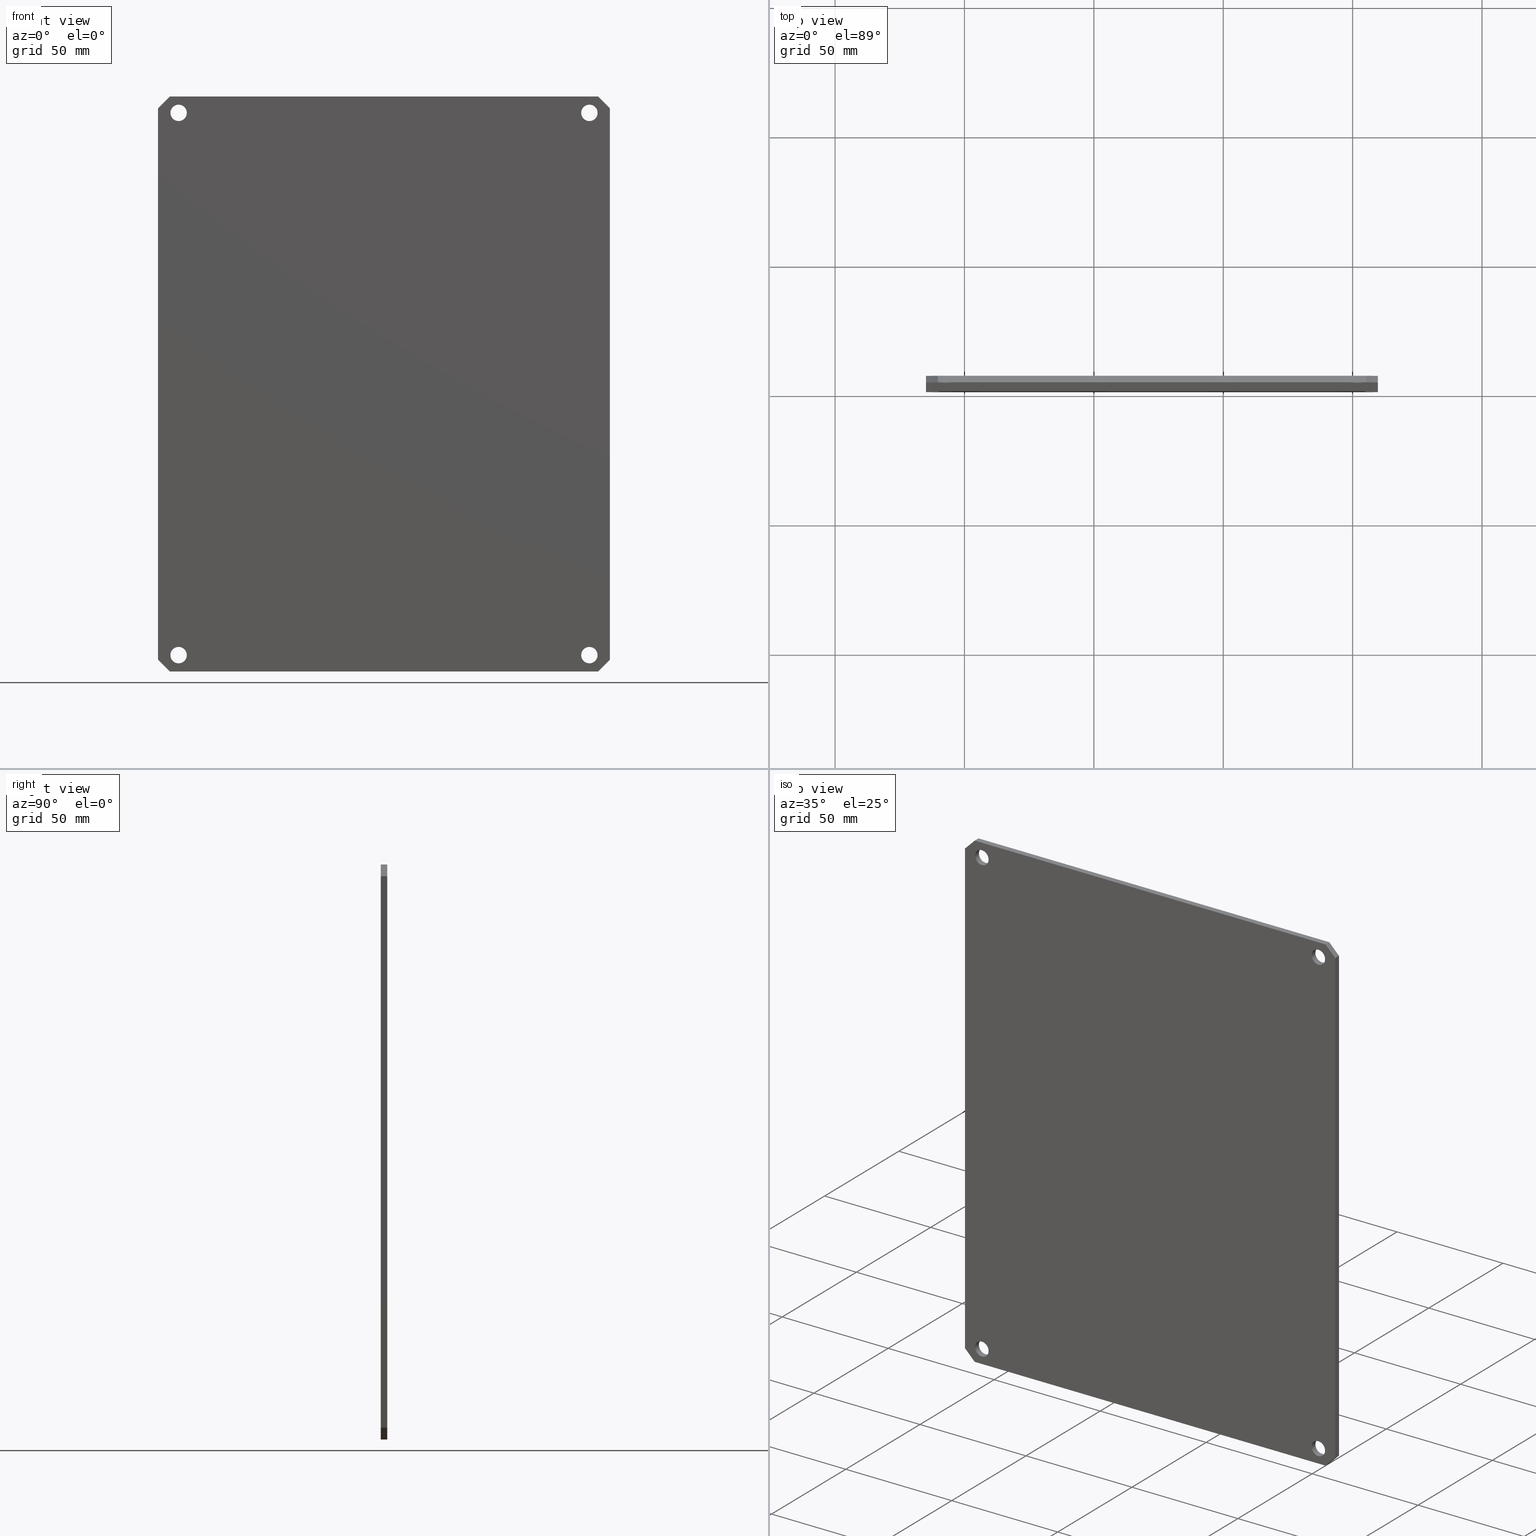
[diagram: canonical four-view strip — front | top / right | iso, engineering-drawing reading convention]
A machine part, canonical four-view strip (front | top / right | iso — engineering-drawing reading convention). The complete STEP part file that produces these views, byte-faithful:
ISO-10303-21;
HEADER;
FILE_DESCRIPTION (( 'STEP AP203' ),
    '1' );
FILE_NAME ('PLA108.step',
    '2014-06-26T14:38:43',
    ( '' ),
    ( '' ),
    'SwSTEP 2.0',
    'SolidWorks 2014',
    '' );
FILE_SCHEMA (( 'CONFIG_CONTROL_DESIGN' ));
ENDSEC;

DATA;
#1 = PLANE ( 'NONE',  #125 ) ;
#2 = FACE_OUTER_BOUND ( 'NONE', #376, .T. ) ;
#3 = CARTESIAN_POINT ( 'NONE',  ( 0.3853371596265775500, 0.06212389664218024400, -2.728529112272011200 ) ) ;
#4 = CARTESIAN_POINT ( 'NONE',  ( 0.07283715962657751100, 0.06212389664218024400, -2.658529112272010100 ) ) ;
#5 = EDGE_LOOP ( 'NONE', ( #502, #59, #428, #642 ) ) ;
#6 = CARTESIAN_POINT ( 'NONE',  ( 0.07283715962657753800, 0.1621238966421802400, -2.783529112272010100 ) ) ;
#7 = PRODUCT_DEFINITION_FORMATION_WITH_SPECIFIED_SOURCE ( 'ANY', '', #552, .NOT_KNOWN. ) ;
#8 = DIRECTION ( 'NONE',  ( -0.0000000000000000000, -0.0000000000000000000, 1.000000000000000000 ) ) ;
#9 = VERTEX_POINT ( 'NONE', #307 ) ;
#10 = ORIENTED_EDGE ( 'NONE', *, *, #161, .T. ) ;
#11 = DIRECTION ( 'NONE',  ( 0.0000000000000000000, 0.0000000000000000000, 1.000000000000000000 ) ) ;
#12 = LINE ( 'NONE', #469, #149 ) ;
#13 = COORDINATED_UNIVERSAL_TIME_OFFSET ( 5, 0, .BEHIND. ) ;
#14 = EDGE_CURVE ( 'NONE', #141, #9, #75, .T. ) ;
#15 = DIRECTION ( 'NONE',  ( 0.7071067811865496800, -0.0000000000000000000, 0.7071067811865454600 ) ) ;
#16 = CARTESIAN_POINT ( 'NONE',  ( 0.3853371596265775500, 0.06212389664218024400, 5.661470887727989300 ) ) ;
#17 = VECTOR ( 'NONE', #574, 39.37007874015748100 ) ;
#18 = ORIENTED_EDGE ( 'NONE', *, *, #486, .F. ) ;
#19 = DIRECTION ( 'NONE',  ( 0.0000000000000000000, 0.0000000000000000000, 1.000000000000000000 ) ) ;
#20 = AXIS2_PLACEMENT_3D ( 'NONE', #60, #431, #108 ) ;
#21 = ORIENTED_EDGE ( 'NONE', *, *, #383, .F. ) ;
#22 = APPROVAL_ROLE ( '' ) ;
#23 = EDGE_CURVE ( 'NONE', #472, #560, #356, .T. ) ;
#24 = VERTEX_POINT ( 'NONE', #559 ) ;
#25 = LINE ( 'NONE', #318, #564 ) ;
#26 = LOCAL_TIME ( 10, 38, 43.00000000000000000, #165 ) ;
#27 = ADVANCED_FACE ( 'NONE', ( #216 ), #142, .T. ) ;
#28 = AXIS2_PLACEMENT_3D ( 'NONE', #211, #154, #372 ) ;
#29 = VECTOR ( 'NONE', #205, 39.37007874015748100 ) ;
#30 = ORIENTED_EDGE ( 'NONE', *, *, #551, .F. ) ;
#31 = EDGE_LOOP ( 'NONE', ( #352, #308 ) ) ;
#32 = ADVANCED_FACE ( 'NONE', ( #397 ), #35, .T. ) ;
#33 = CARTESIAN_POINT ( 'NONE',  ( -6.489662840373422400, 0.06212389664218024400, 5.841470887727989900 ) ) ;
#34 = ORIENTED_EDGE ( 'NONE', *, *, #658, .T. ) ;
#35 = PLANE ( 'NONE',  #301 ) ;
#36 = EDGE_CURVE ( 'NONE', #367, #304, #218, .T. ) ;
#37 = ORIENTED_EDGE ( 'NONE', *, *, #374, .T. ) ;
#38 = ORIENTED_EDGE ( 'NONE', *, *, #232, .T. ) ;
#39 = DIRECTION ( 'NONE',  ( -0.7071067811865474600, -0.0000000000000000000, 0.7071067811865474600 ) ) ;
#40 = APPROVAL ( #346, 'UNSPECIFIED' ) ;
#41 = APPROVAL_PERSON_ORGANIZATION ( #182, #40, #22 ) ;
#42 = FACE_OUTER_BOUND ( 'NONE', #459, .T. ) ;
#43 = APPROVAL_DATE_TIME ( #185, #40 ) ;
#44 = CARTESIAN_POINT ( 'NONE',  ( 0.07283715962657751100, 0.1621238966421802400, 5.591470887727990800 ) ) ;
#45 = CIRCLE ( 'NONE', #355, 0.1249999999999993500 ) ;
#46 = ORIENTED_EDGE ( 'NONE', *, *, #439, .F. ) ;
#47 = CARTESIAN_POINT ( 'NONE',  ( -6.177162840373422400, 0.06212389664218024400, -2.658529112272010100 ) ) ;
#48 = DIRECTION ( 'NONE',  ( 1.000000000000000000, 0.0000000000000000000, 0.0000000000000000000 ) ) ;
#49 = EDGE_CURVE ( 'NONE', #240, #304, #359, .T. ) ;
#50 = CARTESIAN_POINT ( 'NONE',  ( -6.489662840373422400, 0.1621238966421802400, -2.728529112272009400 ) ) ;
#51 = CIRCLE ( 'NONE', #624, 0.1249999999999999000 ) ;
#52 = CARTESIAN_POINT ( 'NONE',  ( -6.177162840373422400, 0.06212389664218024400, 5.716470887727989900 ) ) ;
#53 = ORIENTED_EDGE ( 'NONE', *, *, #492, .T. ) ;
#54 = CARTESIAN_POINT ( 'NONE',  ( -6.489662840373424200, 0.06212389664218024400, -2.728529112272006300 ) ) ;
#55 = EDGE_LOOP ( 'NONE', ( #128, #194 ) ) ;
#56 = PLANE ( 'NONE',  #135 ) ;
#57 = CARTESIAN_POINT ( 'NONE',  ( -6.309662840373421800, 0.06212389664218024400, -2.908529112272010100 ) ) ;
#58 = DIRECTION ( 'NONE',  ( 0.0000000000000000000, 1.000000000000000000, 0.0000000000000000000 ) ) ;
#59 = ORIENTED_EDGE ( 'NONE', *, *, #343, .F. ) ;
#60 = CARTESIAN_POINT ( 'NONE',  ( -6.177162840373422400, 0.06212389664218024400, -2.658529112272010100 ) ) ;
#61 = COORDINATED_UNIVERSAL_TIME_OFFSET ( 5, 0, .BEHIND. ) ;
#62 = VECTOR ( 'NONE', #39, 39.37007874015748900 ) ;
#63 = EDGE_CURVE ( 'NONE', #253, #147, #482, .T. ) ;
#64 = DIRECTION ( 'NONE',  ( 0.0000000000000000000, 1.000000000000000000, 0.0000000000000000000 ) ) ;
#65 = PLANE ( 'NONE',  #271 ) ;
#66 = FACE_OUTER_BOUND ( 'NONE', #540, .T. ) ;
#67 = ORIENTED_EDGE ( 'NONE', *, *, #357, .F. ) ;
#68 = DIRECTION ( 'NONE',  ( 0.0000000000000000000, 1.000000000000000000, 0.0000000000000000000 ) ) ;
#69 = CARTESIAN_POINT ( 'NONE',  ( 0.07283715962657751100, 0.06212389664218024400, -2.533529112272010500 ) ) ;
#70 = DIRECTION ( 'NONE',  ( 0.0000000000000000000, 0.0000000000000000000, 1.000000000000000000 ) ) ;
#71 = LINE ( 'NONE', #442, #605 ) ;
#72 = DIRECTION ( 'NONE',  ( 0.0000000000000000000, -1.000000000000000000, 0.0000000000000000000 ) ) ;
#73 = DIRECTION ( 'NONE',  ( -0.0000000000000000000, 1.000000000000000000, -0.0000000000000000000 ) ) ;
#74 = DIRECTION ( 'NONE',  ( -0.7071067811865474600, -0.0000000000000000000, 0.7071067811865474600 ) ) ;
#75 = LINE ( 'NONE', #610, #611 ) ;
#76 = EDGE_CURVE ( 'NONE', #386, #443, #198, .T. ) ;
#77 = LOCAL_TIME ( 10, 38, 43.00000000000000000, #217 ) ;
#78 = FACE_BOUND ( 'NONE', #187, .T. ) ;
#79 = PERSON_AND_ORGANIZATION_ROLE ( 'design_supplier' ) ;
#80 = LINE ( 'NONE', #230, #633 ) ;
#81 = CC_DESIGN_APPROVAL ( #40, ( #7 ) ) ;
#82 = ORIENTED_EDGE ( 'NONE', *, *, #383, .T. ) ;
#83 = EDGE_CURVE ( 'NONE', #147, #9, #602, .T. ) ;
#84 = CIRCLE ( 'NONE', #494, 0.1249999999999993500 ) ;
#85 = ADVANCED_FACE ( 'NONE', ( #42 ), #254, .F. ) ;
#86 = ADVANCED_FACE ( 'NONE', ( #78, #450, #183, #581, #465 ), #257, .T. ) ;
#87 = DESIGN_CONTEXT ( 'detailed design', #177, 'design' ) ;
#88 = AXIS2_PLACEMENT_3D ( 'NONE', #47, #296, #268 ) ;
#89 = ORIENTED_EDGE ( 'NONE', *, *, #36, .T. ) ;
#90 = ORGANIZATION ( 'UNSPECIFIED', 'UNSPECIFIED', '' ) ;
#91 = DIRECTION ( 'NONE',  ( 0.0000000000000000000, 1.000000000000000000, 0.0000000000000000000 ) ) ;
#92 = CYLINDRICAL_SURFACE ( 'NONE', #285, 0.1249999999999993500 ) ;
#93 = ORIENTED_EDGE ( 'NONE', *, *, #403, .T. ) ;
#94 = DIRECTION ( 'NONE',  ( 0.7071067811865474600, -0.0000000000000000000, -0.7071067811865474600 ) ) ;
#95 = EDGE_CURVE ( 'NONE', #463, #24, #164, .T. ) ;
#96 = VERTEX_POINT ( 'NONE', #99 ) ;
#97 = DIRECTION ( 'NONE',  ( 0.0000000000000000000, 0.0000000000000000000, 1.000000000000000000 ) ) ;
#98 = ORIENTED_EDGE ( 'NONE', *, *, #293, .F. ) ;
#99 = CARTESIAN_POINT ( 'NONE',  ( 0.07283715962657753800, 0.06212389664218024400, 5.466470887727989900 ) ) ;
#100 = CARTESIAN_POINT ( 'NONE',  ( 0.07283715962657753800, 0.06212389664218024400, -2.783529112272010100 ) ) ;
#101 = AXIS2_PLACEMENT_3D ( 'NONE', #283, #638, #339 ) ;
#102 = CARTESIAN_POINT ( 'NONE',  ( -6.489662840373422400, 0.06212389664218024400, 5.841470887727989900 ) ) ;
#103 = ORIENTED_EDGE ( 'NONE', *, *, #439, .T. ) ;
#104 = DIRECTION ( 'NONE',  ( 0.0000000000000000000, 1.000000000000000000, 0.0000000000000000000 ) ) ;
#105 = DIRECTION ( 'NONE',  ( 0.7071067811865474600, 0.0000000000000000000, -0.7071067811865474600 ) ) ;
#106 = DIRECTION ( 'NONE',  ( -0.7071067811865454600, 0.0000000000000000000, 0.7071067811865496800 ) ) ;
#107 = VECTOR ( 'NONE', #575, 39.37007874015748100 ) ;
#108 = DIRECTION ( 'NONE',  ( 0.0000000000000000000, 0.0000000000000000000, 1.000000000000000000 ) ) ;
#109 = EDGE_LOOP ( 'NONE', ( #345, #21, #103, #53 ) ) ;
#110 = CARTESIAN_POINT ( 'NONE',  ( 0.3853371596265775500, 0.1621238966421802400, 5.841470887727989900 ) ) ;
#111 = CC_DESIGN_PERSON_AND_ORGANIZATION_ASSIGNMENT ( #583, #398, ( #7 ) ) ;
#112 = DIRECTION ( 'NONE',  ( -0.7071067811865496800, -0.0000000000000000000, -0.7071067811865454600 ) ) ;
#113 = EDGE_LOOP ( 'NONE', ( #157, #249, #305, #637 ) ) ;
#114 = CARTESIAN_POINT ( 'NONE',  ( 0.07283715962657751100, 0.06212389664218024400, -2.658529112272010100 ) ) ;
#115 = LINE ( 'NONE', #102, #388 ) ;
#116 = AXIS2_PLACEMENT_3D ( 'NONE', #410, #91, #460 ) ;
#117 = CARTESIAN_POINT ( 'NONE',  ( 0.07283715962657751100, 0.1621238966421802400, 5.716470887727989900 ) ) ;
#118 = DIRECTION ( 'NONE',  ( 0.0000000000000000000, -1.000000000000000000, 0.0000000000000000000 ) ) ;
#119 = CARTESIAN_POINT ( 'NONE',  ( -6.309662840373421800, 0.06212389664218024400, 5.841470887727991700 ) ) ;
#120 = FACE_BOUND ( 'NONE', #31, .T. ) ;
#121 = CARTESIAN_POINT ( 'NONE',  ( 0.2053371596265717900, 0.06212389664218024400, 5.841470887727991700 ) ) ;
#122 = ORIENTED_EDGE ( 'NONE', *, *, #429, .T. ) ;
#123 = ORIENTED_EDGE ( 'NONE', *, *, #200, .F. ) ;
#124 = LENGTH_MEASURE_WITH_UNIT ( LENGTH_MEASURE( 0.02539999999999999900 ), #385 );
#125 = AXIS2_PLACEMENT_3D ( 'NONE', #57, #427, #105 ) ;
#126 = MECHANICAL_CONTEXT ( 'NONE', #387, 'mechanical' ) ;
#127 = CYLINDRICAL_SURFACE ( 'NONE', #210, 0.1249999999999993500 ) ;
#128 = ORIENTED_EDGE ( 'NONE', *, *, #587, .T. ) ;
#129 = ORIENTED_EDGE ( 'NONE', *, *, #492, .F. ) ;
#130 = PERSON_AND_ORGANIZATION_ROLE ( 'classification_officer' ) ;
#131 = EDGE_CURVE ( 'NONE', #195, #313, #25, .T. ) ;
#132 = ORIENTED_EDGE ( 'NONE', *, *, #276, .T. ) ;
#133 = CIRCLE ( 'NONE', #607, 0.1249999999999999000 ) ;
#134 = APPROVAL_DATE_TIME ( #281, #298 ) ;
#135 = AXIS2_PLACEMENT_3D ( 'NONE', #3, #106, #479 ) ;
#136 = ADVANCED_FACE ( 'NONE', ( #434 ), #619, .F. ) ;
#137 = LINE ( 'NONE', #275, #152 ) ;
#138 = ORIENTED_EDGE ( 'NONE', *, *, #63, .F. ) ;
#139 = ORIENTED_EDGE ( 'NONE', *, *, #241, .F. ) ;
#140 = VECTOR ( 'NONE', #214, 39.37007874015748100 ) ;
#141 = VERTEX_POINT ( 'NONE', #419 ) ;
#142 = PLANE ( 'NONE',  #228 ) ;
#143 = ORIENTED_EDGE ( 'NONE', *, *, #658, .F. ) ;
#144 = CARTESIAN_POINT ( 'NONE',  ( -6.399662840373422600, 0.06212389664218024400, -2.818529112272009800 ) ) ;
#145 = ORIENTED_EDGE ( 'NONE', *, *, #241, .T. ) ;
#146 = CC_DESIGN_PERSON_AND_ORGANIZATION_ASSIGNMENT ( #451, #79, ( #7 ) ) ;
#147 = VERTEX_POINT ( 'NONE', #50 ) ;
#148 = CARTESIAN_POINT ( 'NONE',  ( -6.489662840373422400, 0.06212389664218024400, -2.908529112272010100 ) ) ;
#149 = VECTOR ( 'NONE', #370, 39.37007874015748100 ) ;
#150 = APPROVAL_PERSON_ORGANIZATION ( #300, #298, #547 ) ;
#151 = DIRECTION ( 'NONE',  ( -0.0000000000000000000, 1.000000000000000000, -0.0000000000000000000 ) ) ;
#152 = VECTOR ( 'NONE', #381, 39.37007874015748100 ) ;
#153 = ORIENTED_EDGE ( 'NONE', *, *, #618, .F. ) ;
#154 = DIRECTION ( 'NONE',  ( -0.0000000000000000000, 1.000000000000000000, -0.0000000000000000000 ) ) ;
#155 = AXIS2_PLACEMENT_3D ( 'NONE', #114, #488, #166 ) ;
#156 = DIRECTION ( 'NONE',  ( 0.0000000000000000000, 0.0000000000000000000, 1.000000000000000000 ) ) ;
#157 = ORIENTED_EDGE ( 'NONE', *, *, #415, .F. ) ;
#158 = CARTESIAN_POINT ( 'NONE',  ( 0.07283715962657751100, 0.06212389664218024400, 5.591470887727990800 ) ) ;
#159 = CARTESIAN_POINT ( 'NONE',  ( -6.489662840373422400, 0.06212389664218024400, 5.841470887727989900 ) ) ;
#160 = ORIENTED_EDGE ( 'NONE', *, *, #499, .F. ) ;
#161 = EDGE_CURVE ( 'NONE', #463, #441, #12, .T. ) ;
#162 = DIRECTION ( 'NONE',  ( 0.0000000000000000000, 0.0000000000000000000, -1.000000000000000000 ) ) ;
#163 = CARTESIAN_POINT ( 'NONE',  ( -6.489662840373422400, 0.1621238966421802400, -2.908529112272010100 ) ) ;
#164 = LINE ( 'NONE', #418, #315 ) ;
#165 = COORDINATED_UNIVERSAL_TIME_OFFSET ( 5, 0, .BEHIND. ) ;
#166 = DIRECTION ( 'NONE',  ( 0.0000000000000000000, 0.0000000000000000000, 1.000000000000000000 ) ) ;
#167 = DIRECTION ( 'NONE',  ( 0.0000000000000000000, 1.000000000000000000, 0.0000000000000000000 ) ) ;
#168 = DIRECTION ( 'NONE',  ( 0.0000000000000000000, 0.0000000000000000000, 1.000000000000000000 ) ) ;
#169 = FACE_OUTER_BOUND ( 'NONE', #113, .T. ) ;
#170 = EDGE_LOOP ( 'NONE', ( #129, #529 ) ) ;
#171 = AXIS2_PLACEMENT_3D ( 'NONE', #384, #68, #435 ) ;
#172 = CARTESIAN_POINT ( 'NONE',  ( 0.07283715962657753800, 0.1621238966421802400, 5.466470887727989900 ) ) ;
#173 = CARTESIAN_POINT ( 'NONE',  ( 1.232837159626575500, 0.06212389664218024400, 4.813970887727988300 ) ) ;
#174 = ORIENTED_EDGE ( 'NONE', *, *, #328, .F. ) ;
#175 = EDGE_CURVE ( 'NONE', #548, #313, #299, .T. ) ;
#176 = CARTESIAN_POINT ( 'NONE',  ( -6.177162840373422400, 0.1621238966421802400, -2.658529112272010100 ) ) ;
#177 = APPLICATION_CONTEXT ( 'configuration controlled 3d designs of mechanical parts and assemblies' ) ;
#178 = ORIENTED_EDGE ( 'NONE', *, *, #507, .F. ) ;
#179 = ORIENTED_EDGE ( 'NONE', *, *, #83, .T. ) ;
#180 = APPROVAL_STATUS ( 'not_yet_approved' ) ;
#181 = DIRECTION ( 'NONE',  ( 0.0000000000000000000, 0.0000000000000000000, 1.000000000000000000 ) ) ;
#182 = PERSON_AND_ORGANIZATION ( #504, #90 ) ;
#183 = FACE_BOUND ( 'NONE', #294, .T. ) ;
#184 = SECURITY_CLASSIFICATION ( '', '', #446 ) ;
#185 = DATE_AND_TIME ( #314, #449 ) ;
#186 = VECTOR ( 'NONE', #118, 39.37007874015748100 ) ;
#187 = EDGE_LOOP ( 'NONE', ( #82, #37 ) ) ;
#188 = DIRECTION ( 'NONE',  ( -1.000000000000000000, -0.0000000000000000000, -0.0000000000000000000 ) ) ;
#189 = VERTEX_POINT ( 'NONE', #207 ) ;
#190 = PLANE ( 'NONE',  #594 ) ;
#191 = FACE_OUTER_BOUND ( 'NONE', #400, .T. ) ;
#192 = ADVANCED_FACE ( 'NONE', ( #550 ), #536, .F. ) ;
#193 = CARTESIAN_POINT ( 'NONE',  ( -6.177162840373422400, 0.1621238966421802400, 5.591470887727990800 ) ) ;
#194 = ORIENTED_EDGE ( 'NONE', *, *, #351, .T. ) ;
#195 = VERTEX_POINT ( 'NONE', #100 ) ;
#196 = DIRECTION ( 'NONE',  ( 0.0000000000000000000, 0.0000000000000000000, 1.000000000000000000 ) ) ;
#197 = PERSON_AND_ORGANIZATION ( #504, #90 ) ;
#198 = CIRCLE ( 'NONE', #261, 0.1249999999999993500 ) ;
#199 = DIRECTION ( 'NONE',  ( 0.0000000000000000000, 1.000000000000000000, 0.0000000000000000000 ) ) ;
#200 = EDGE_CURVE ( 'NONE', #313, #548, #133, .T. ) ;
#201 = VECTOR ( 'NONE', #231, 39.37007874015748100 ) ;
#202 = ORIENTED_EDGE ( 'NONE', *, *, #499, .T. ) ;
#203 = DIRECTION ( 'NONE',  ( 0.7071067811865454600, 0.0000000000000000000, -0.7071067811865496800 ) ) ;
#204 = DIRECTION ( 'NONE',  ( 0.0000000000000000000, 0.0000000000000000000, 1.000000000000000000 ) ) ;
#205 = DIRECTION ( 'NONE',  ( -0.0000000000000000000, 1.000000000000000000, -0.0000000000000000000 ) ) ;
#206 = FACE_OUTER_BOUND ( 'NONE', #596, .T. ) ;
#207 = CARTESIAN_POINT ( 'NONE',  ( 0.3853371596265775500, 0.1621238966421802400, -2.728529112272010800 ) ) ;
#208 = CARTESIAN_POINT ( 'NONE',  ( -6.309662840373421800, 0.06212389664218024400, -2.908529112272010100 ) ) ;
#209 = CARTESIAN_POINT ( 'NONE',  ( -6.489662840373422400, 0.1621238966421802400, -2.908529112272010100 ) ) ;
#210 = AXIS2_PLACEMENT_3D ( 'NONE', #158, #219, #269 ) ;
#211 = CARTESIAN_POINT ( 'NONE',  ( -6.177162840373422400, 0.06212389664218024400, 5.591470887727990800 ) ) ;
#212 = DIRECTION ( 'NONE',  ( 0.7071067811865474600, -0.0000000000000000000, -0.7071067811865474600 ) ) ;
#213 = EDGE_CURVE ( 'NONE', #304, #253, #662, .T. ) ;
#214 = DIRECTION ( 'NONE',  ( -0.0000000000000000000, 1.000000000000000000, -0.0000000000000000000 ) ) ;
#215 = ADVANCED_BREP_SHAPE_REPRESENTATION ( 'PLA108', ( #262, #445 ), #309 ) ;
#216 = FACE_OUTER_BOUND ( 'NONE', #512, .T. ) ;
#217 = COORDINATED_UNIVERSAL_TIME_OFFSET ( 5, 0, .BEHIND. ) ;
#218 = LINE ( 'NONE', #360, #614 ) ;
#219 = DIRECTION ( 'NONE',  ( -0.0000000000000000000, 1.000000000000000000, -0.0000000000000000000 ) ) ;
#220 = LINE ( 'NONE', #592, #201 ) ;
#221 = EDGE_LOOP ( 'NONE', ( #174, #122, #420, #521 ) ) ;
#222 = CARTESIAN_POINT ( 'NONE',  ( -6.489662840373422400, 0.06212389664218024400, 5.841470887727989900 ) ) ;
#223 = CC_DESIGN_PERSON_AND_ORGANIZATION_ASSIGNMENT ( #317, #130, ( #184 ) ) ;
#224 = CARTESIAN_POINT ( 'NONE',  ( -6.177162840373422400, 0.06212389664218024400, -2.533529112272010500 ) ) ;
#225 = VERTEX_POINT ( 'NONE', #52 ) ;
#226 = CARTESIAN_POINT ( 'NONE',  ( 0.07283715962657753800, 0.06212389664218024400, 5.466470887727990800 ) ) ;
#227 =( CONVERSION_BASED_UNIT ( 'INCH', #124 ) LENGTH_UNIT ( ) NAMED_UNIT ( #248 ) );
#228 = AXIS2_PLACEMENT_3D ( 'NONE', #33, #513, #196 ) ;
#229 = LINE ( 'NONE', #209, #353 ) ;
#230 = CARTESIAN_POINT ( 'NONE',  ( -6.489662840373422400, 0.06212389664218024400, -2.728529112272009400 ) ) ;
#231 = DIRECTION ( 'NONE',  ( -0.0000000000000000000, 1.000000000000000000, -0.0000000000000000000 ) ) ;
#232 = EDGE_CURVE ( 'NONE', #617, #472, #280, .T. ) ;
#233 = DIRECTION ( 'NONE',  ( 0.0000000000000000000, 1.000000000000000000, 0.0000000000000000000 ) ) ;
#234 = ORIENTED_EDGE ( 'NONE', *, *, #131, .T. ) ;
#235 = EDGE_LOOP ( 'NONE', ( #98, #18 ) ) ;
#236 = AXIS2_PLACEMENT_3D ( 'NONE', #4, #531, #156 ) ;
#237 = SHAPE_DEFINITION_REPRESENTATION ( #476, #215 ) ;
#238 = APPROVAL_STATUS ( 'not_yet_approved' ) ;
#239 = CIRCLE ( 'NONE', #101, 0.1249999999999993500 ) ;
#240 = VERTEX_POINT ( 'NONE', #54 ) ;
#241 = EDGE_CURVE ( 'NONE', #441, #467, #115, .T. ) ;
#242 = CARTESIAN_POINT ( 'NONE',  ( -6.489662840373422400, 0.06212389664218024400, -2.908529112272010100 ) ) ;
#243 = ORIENTED_EDGE ( 'NONE', *, *, #648, .T. ) ;
#244 = DIRECTION ( 'NONE',  ( 0.0000000000000000000, 0.0000000000000000000, -1.000000000000000000 ) ) ;
#245 = FACE_OUTER_BOUND ( 'NONE', #448, .T. ) ;
#246 = ADVANCED_FACE ( 'NONE', ( #523 ), #558, .F. ) ;
#247 = AXIS2_PLACEMENT_3D ( 'NONE', #489, #167, #537 ) ;
#248 = DIMENSIONAL_EXPONENTS ( 1.000000000000000000, 0.0000000000000000000, 0.0000000000000000000, 0.0000000000000000000, 0.0000000000000000000, 0.0000000000000000000, 0.0000000000000000000 ) ;
#249 = ORIENTED_EDGE ( 'NONE', *, *, #587, .F. ) ;
#250 = DIRECTION ( 'NONE',  ( 0.0000000000000000000, 1.000000000000000000, 0.0000000000000000000 ) ) ;
#251 = EDGE_CURVE ( 'NONE', #96, #485, #259, .T. ) ;
#252 = CIRCLE ( 'NONE', #171, 0.1249999999999999000 ) ;
#253 = VERTEX_POINT ( 'NONE', #572 ) ;
#254 = PLANE ( 'NONE',  #404 ) ;
#255 = CC_DESIGN_DATE_AND_TIME_ASSIGNMENT ( #436, #500, ( #184 ) ) ;
#256 = ORIENTED_EDGE ( 'NONE', *, *, #374, .F. ) ;
#257 = PLANE ( 'NONE',  #473 ) ;
#258 = DIRECTION ( 'NONE',  ( -1.000000000000000000, 0.0000000000000000000, -0.0000000000000000000 ) ) ;
#259 = CIRCLE ( 'NONE', #665, 0.1249999999999993500 ) ;
#260 = CARTESIAN_POINT ( 'NONE',  ( -6.177162840373422400, 0.06212389664218024400, -2.783529112272010100 ) ) ;
#261 = AXIS2_PLACEMENT_3D ( 'NONE', #44, #414, #97 ) ;
#262 = MANIFOLD_SOLID_BREP ( '<70-60822PC-1>-<Chamfer1>', #292 ) ;
#263 = DIRECTION ( 'NONE',  ( 0.0000000000000000000, 1.000000000000000000, 0.0000000000000000000 ) ) ;
#264 = PLANE ( 'NONE',  #653 ) ;
#265 = LINE ( 'NONE', #331, #651 ) ;
#266 = ORIENTED_EDGE ( 'NONE', *, *, #351, .F. ) ;
#267 = DIRECTION ( 'NONE',  ( 0.0000000000000000000, 0.0000000000000000000, 1.000000000000000000 ) ) ;
#268 = DIRECTION ( 'NONE',  ( 0.0000000000000000000, 0.0000000000000000000, 1.000000000000000000 ) ) ;
#269 = DIRECTION ( 'NONE',  ( 0.0000000000000000000, 0.0000000000000000000, 1.000000000000000000 ) ) ;
#270 = LINE ( 'NONE', #110, #409 ) ;
#271 = AXIS2_PLACEMENT_3D ( 'NONE', #163, #584, #279 ) ;
#272 = DIRECTION ( 'NONE',  ( -0.7071067811865496800, -0.0000000000000000000, -0.7071067811865454600 ) ) ;
#273 = VERTEX_POINT ( 'NONE', #373 ) ;
#274 = DIRECTION ( 'NONE',  ( 1.000000000000000000, 0.0000000000000000000, -0.0000000000000000000 ) ) ;
#275 = CARTESIAN_POINT ( 'NONE',  ( 0.3853371596265775500, 0.06212389664218024400, -2.728529112272011200 ) ) ;
#276 = EDGE_CURVE ( 'NONE', #661, #548, #291, .T. ) ;
#277 = CARTESIAN_POINT ( 'NONE',  ( 0.3853371596265775500, 0.06212389664218024400, 5.841470887727989900 ) ) ;
#278 = ORIENTED_EDGE ( 'NONE', *, *, #395, .T. ) ;
#279 = DIRECTION ( 'NONE',  ( 0.0000000000000000000, -0.0000000000000000000, -1.000000000000000000 ) ) ;
#280 = LINE ( 'NONE', #666, #649 ) ;
#281 = DATE_AND_TIME ( #417, #553 ) ;
#282 =( NAMED_UNIT ( * ) SI_UNIT ( $, .STERADIAN. ) SOLID_ANGLE_UNIT ( ) );
#283 = CARTESIAN_POINT ( 'NONE',  ( -6.177162840373422400, 0.06212389664218024400, 5.591470887727990800 ) ) ;
#284 = DIRECTION ( 'NONE',  ( -0.0000000000000000000, 1.000000000000000000, -0.0000000000000000000 ) ) ;
#285 = AXIS2_PLACEMENT_3D ( 'NONE', #333, #582, #11 ) ;
#286 = FACE_BOUND ( 'NONE', #462, .T. ) ;
#287 = CARTESIAN_POINT ( 'NONE',  ( -6.177162840373422400, 0.06212389664218024400, -2.658529112272010100 ) ) ;
#288 = VERTEX_POINT ( 'NONE', #527 ) ;
#289 = CIRCLE ( 'NONE', #155, 0.1249999999999999000 ) ;
#290 = CARTESIAN_POINT ( 'NONE',  ( -6.177162840373422400, 0.1621238966421802400, 5.466470887727989900 ) ) ;
#291 = LINE ( 'NONE', #623, #140 ) ;
#292 = CLOSED_SHELL ( 'NONE', ( #246, #354, #405, #457, #27, #509, #32, #510, #86, #650, #554, #609, #306, #192, #85, #136, #302, #557 ) ) ;
#293 = EDGE_CURVE ( 'NONE', #573, #320, #416, .T. ) ;
#294 = EDGE_LOOP ( 'NONE', ( #533, #34 ) ) ;
#295 = PERSON_AND_ORGANIZATION_ROLE ( 'creator' ) ;
#296 = DIRECTION ( 'NONE',  ( -0.0000000000000000000, 1.000000000000000000, -0.0000000000000000000 ) ) ;
#297 = ORIENTED_EDGE ( 'NONE', *, *, #14, .T. ) ;
#298 = APPROVAL ( #180, 'UNSPECIFIED' ) ;
#299 = CIRCLE ( 'NONE', #508, 0.1249999999999999000 ) ;
#300 = PERSON_AND_ORGANIZATION ( #504, #90 ) ;
#301 = AXIS2_PLACEMENT_3D ( 'NONE', #511, #310, #656 ) ;
#302 = ADVANCED_FACE ( 'NONE', ( #426 ), #56, .F. ) ;
#303 = CYLINDRICAL_SURFACE ( 'NONE', #88, 0.1249999999999999000 ) ;
#304 = VERTEX_POINT ( 'NONE', #627 ) ;
#305 = ORIENTED_EDGE ( 'NONE', *, *, #551, .T. ) ;
#306 = ADVANCED_FACE ( 'NONE', ( #2 ), #127, .F. ) ;
#307 = CARTESIAN_POINT ( 'NONE',  ( -6.489662840373422400, 0.1621238966421802400, 5.661470887727992000 ) ) ;
#308 = ORIENTED_EDGE ( 'NONE', *, *, #461, .F. ) ;
#309 =( GEOMETRIC_REPRESENTATION_CONTEXT ( 3 ) GLOBAL_UNCERTAINTY_ASSIGNED_CONTEXT ( ( #597 ) ) GLOBAL_UNIT_ASSIGNED_CONTEXT ( ( #227, #589, #282 ) ) REPRESENTATION_CONTEXT ( 'NONE', 'WORKASPACE' ) );
#310 = DIRECTION ( 'NONE',  ( 1.000000000000000000, -0.0000000000000000000, 0.0000000000000000000 ) ) ;
#311 = DIRECTION ( 'NONE',  ( 0.0000000000000000000, 0.0000000000000000000, 1.000000000000000000 ) ) ;
#312 = ORIENTED_EDGE ( 'NONE', *, *, #452, .F. ) ;
#313 = VERTEX_POINT ( 'NONE', #6 ) ;
#314 = CALENDAR_DATE ( 2014, 26, 6 ) ;
#315 = VECTOR ( 'NONE', #48, 39.37007874015748100 ) ;
#316 = EDGE_CURVE ( 'NONE', #467, #24, #654, .T. ) ;
#317 = PERSON_AND_ORGANIZATION ( #504, #90 ) ;
#318 = CARTESIAN_POINT ( 'NONE',  ( 0.07283715962657753800, 0.06212389664218024400, -2.783529112272010100 ) ) ;
#319 = CARTESIAN_POINT ( 'NONE',  ( -6.177162840373422400, 0.06212389664218024400, -2.533529112272010500 ) ) ;
#320 = VERTEX_POINT ( 'NONE', #380 ) ;
#321 = DIRECTION ( 'NONE',  ( -0.7071067811865475700, 0.0000000000000000000, -0.7071067811865475700 ) ) ;
#322 = DIRECTION ( 'NONE',  ( 0.0000000000000000000, 0.0000000000000000000, -1.000000000000000000 ) ) ;
#323 = DIRECTION ( 'NONE',  ( 0.0000000000000000000, 1.000000000000000000, 0.0000000000000000000 ) ) ;
#324 = VECTOR ( 'NONE', #322, 39.37007874015748100 ) ;
#325 = ORIENTED_EDGE ( 'NONE', *, *, #23, .T. ) ;
#326 = AXIS2_PLACEMENT_3D ( 'NONE', #176, #543, #181 ) ;
#327 = ORIENTED_EDGE ( 'NONE', *, *, #276, .F. ) ;
#328 = EDGE_CURVE ( 'NONE', #362, #189, #270, .T. ) ;
#329 = ORIENTED_EDGE ( 'NONE', *, *, #561, .F. ) ;
#330 = DATE_AND_TIME ( #464, #601 ) ;
#331 = CARTESIAN_POINT ( 'NONE',  ( -10.77466284037342500, 0.06212389664218024400, 1.376470887728016500 ) ) ;
#332 = VECTOR ( 'NONE', #363, 39.37007874015748100 ) ;
#333 = CARTESIAN_POINT ( 'NONE',  ( 0.07283715962657751100, 0.06212389664218024400, 5.591470887727990800 ) ) ;
#334 = LINE ( 'NONE', #390, #585 ) ;
#335 = CARTESIAN_POINT ( 'NONE',  ( 0.07283715962657751100, 0.1621238966421802400, -2.533529112272010500 ) ) ;
#336 = CC_DESIGN_APPROVAL ( #298, ( #184 ) ) ;
#337 = EDGE_LOOP ( 'NONE', ( #411, #626 ) ) ;
#338 = APPLICATION_PROTOCOL_DEFINITION ( 'international standard', 'config_control_design', 1994, #387 ) ;
#339 = DIRECTION ( 'NONE',  ( 0.0000000000000000000, 0.0000000000000000000, 1.000000000000000000 ) ) ;
#340 = FACE_OUTER_BOUND ( 'NONE', #408, .T. ) ;
#341 = DIRECTION ( 'NONE',  ( 0.0000000000000000000, 1.000000000000000000, 0.0000000000000000000 ) ) ;
#342 = ORIENTED_EDGE ( 'NONE', *, *, #403, .F. ) ;
#343 = EDGE_CURVE ( 'NONE', #288, #367, #396, .T. ) ;
#344 = CARTESIAN_POINT ( 'NONE',  ( 0.07283715962657751100, 0.06212389664218024400, -2.658529112272010100 ) ) ;
#345 = ORIENTED_EDGE ( 'NONE', *, *, #232, .F. ) ;
#346 = APPROVAL_STATUS ( 'not_yet_approved' ) ;
#347 = APPROVAL_DATE_TIME ( #481, #546 ) ;
#348 = VECTOR ( 'NONE', #94, 39.37007874015748900 ) ;
#349 = LINE ( 'NONE', #16, #186 ) ;
#350 = ORIENTED_EDGE ( 'NONE', *, *, #530, .F. ) ;
#351 = EDGE_CURVE ( 'NONE', #526, #652, #252, .T. ) ;
#352 = ORIENTED_EDGE ( 'NONE', *, *, #76, .F. ) ;
#353 = VECTOR ( 'NONE', #188, 39.37007874015748100 ) ;
#354 = ADVANCED_FACE ( 'NONE', ( #542 ), #92, .F. ) ;
#355 = AXIS2_PLACEMENT_3D ( 'NONE', #640, #341, #19 ) ;
#356 = CIRCLE ( 'NONE', #116, 0.1249999999999993500 ) ;
#357 = EDGE_CURVE ( 'NONE', #96, #443, #514, .T. ) ;
#358 = APPROVAL_PERSON_ORGANIZATION ( #498, #546, #598 ) ;
#359 = LINE ( 'NONE', #144, #348 ) ;
#360 = CARTESIAN_POINT ( 'NONE',  ( -6.489662840373422400, 0.06212389664218024400, -2.908529112272010100 ) ) ;
#361 = VECTOR ( 'NONE', #15, 39.37007874015748100 ) ;
#362 = VERTEX_POINT ( 'NONE', #535 ) ;
#363 = DIRECTION ( 'NONE',  ( -0.0000000000000000000, -0.0000000000000000000, 1.000000000000000000 ) ) ;
#364 = ORIENTED_EDGE ( 'NONE', *, *, #175, .T. ) ;
#365 = CC_DESIGN_SECURITY_CLASSIFICATION ( #184, ( #7 ) ) ;
#366 = DIRECTION ( 'NONE',  ( 0.0000000000000000000, -0.0000000000000000000, -1.000000000000000000 ) ) ;
#367 = VERTEX_POINT ( 'NONE', #636 ) ;
#368 = EDGE_CURVE ( 'NONE', #367, #496, #644, .T. ) ;
#369 = CYLINDRICAL_SURFACE ( 'NONE', #458, 0.1249999999999999000 ) ;
#370 = DIRECTION ( 'NONE',  ( 0.0000000000000000000, -1.000000000000000000, 0.0000000000000000000 ) ) ;
#371 = DIRECTION ( 'NONE',  ( -0.0000000000000000000, 1.000000000000000000, -0.0000000000000000000 ) ) ;
#372 = DIRECTION ( 'NONE',  ( 0.0000000000000000000, 0.0000000000000000000, 1.000000000000000000 ) ) ;
#373 = CARTESIAN_POINT ( 'NONE',  ( 0.3853371596265775500, 0.06212389664218024400, 5.661470887727986700 ) ) ;
#374 = EDGE_CURVE ( 'NONE', #617, #225, #501, .T. ) ;
#375 = CARTESIAN_POINT ( 'NONE',  ( 0.07283715962657751100, 0.06212389664218024400, 5.716470887727989900 ) ) ;
#376 = EDGE_LOOP ( 'NONE', ( #67, #312, #532, #516 ) ) ;
#377 = CARTESIAN_POINT ( 'NONE',  ( -6.177162840373422400, 0.1621238966421802400, -2.658529112272010100 ) ) ;
#378 = CARTESIAN_POINT ( 'NONE',  ( 0.3853371596265775500, 0.1621238966421802400, -2.728529112272011200 ) ) ;
#379 = VECTOR ( 'NONE', #588, 39.37007874015748100 ) ;
#380 = CARTESIAN_POINT ( 'NONE',  ( -6.177162840373422400, 0.1621238966421802400, -2.783529112272010100 ) ) ;
#381 = DIRECTION ( 'NONE',  ( 0.0000000000000000000, 1.000000000000000000, 0.0000000000000000000 ) ) ;
#382 = ORIENTED_EDGE ( 'NONE', *, *, #316, .T. ) ;
#383 = EDGE_CURVE ( 'NONE', #225, #617, #239, .T. ) ;
#384 = CARTESIAN_POINT ( 'NONE',  ( -6.177162840373422400, 0.06212389664218024400, -2.658529112272010100 ) ) ;
#385 =( LENGTH_UNIT ( ) NAMED_UNIT ( * ) SI_UNIT ( $, .METRE. ) );
#386 = VERTEX_POINT ( 'NONE', #117 ) ;
#387 = APPLICATION_CONTEXT ( 'configuration controlled 3d designs of mechanical parts and assemblies' ) ;
#388 = VECTOR ( 'NONE', #524, 39.37007874015748100 ) ;
#389 = DIRECTION ( 'NONE',  ( 0.7071067811865496800, -0.0000000000000000000, 0.7071067811865454600 ) ) ;
#390 = CARTESIAN_POINT ( 'NONE',  ( -6.177162840373422400, 0.06212389664218024400, 5.716470887727989900 ) ) ;
#391 = AXIS2_PLACEMENT_3D ( 'NONE', #491, #438, #168 ) ;
#392 = FACE_BOUND ( 'NONE', #170, .T. ) ;
#393 = ORIENTED_EDGE ( 'NONE', *, *, #175, .F. ) ;
#394 = CARTESIAN_POINT ( 'NONE',  ( 0.3853371596265786100, 0.06212389664218024400, -2.728529112272008600 ) ) ;
#395 = EDGE_CURVE ( 'NONE', #9, #463, #616, .T. ) ;
#396 = LINE ( 'NONE', #483, #107 ) ;
#397 = FACE_OUTER_BOUND ( 'NONE', #221, .T. ) ;
#398 = PERSON_AND_ORGANIZATION_ROLE ( 'creator' ) ;
#399 = ORIENTED_EDGE ( 'NONE', *, *, #316, .F. ) ;
#400 = EDGE_LOOP ( 'NONE', ( #178, #545, #89, #659 ) ) ;
#401 = PRODUCT_RELATED_PRODUCT_CATEGORY ( 'detail', '', ( #552 ) ) ;
#402 = VECTOR ( 'NONE', #475, 39.37007874015748100 ) ;
#403 = EDGE_CURVE ( 'NONE', #147, #240, #80, .T. ) ;
#404 = AXIS2_PLACEMENT_3D ( 'NONE', #519, #203, #566 ) ;
#405 = ADVANCED_FACE ( 'NONE', ( #66 ), #466, .F. ) ;
#406 = ORIENTED_EDGE ( 'NONE', *, *, #415, .T. ) ;
#407 = VECTOR ( 'NONE', #8, 39.37007874015748100 ) ;
#408 = EDGE_LOOP ( 'NONE', ( #556, #563, #132, #364 ) ) ;
#409 = VECTOR ( 'NONE', #162, 39.37007874015748100 ) ;
#410 = CARTESIAN_POINT ( 'NONE',  ( -6.177162840373422400, 0.1621238966421802400, 5.591470887727990800 ) ) ;
#411 = ORIENTED_EDGE ( 'NONE', *, *, #452, .T. ) ;
#412 = ORIENTED_EDGE ( 'NONE', *, *, #36, .F. ) ;
#413 = EDGE_LOOP ( 'NONE', ( #608, #342, #138, #433 ) ) ;
#414 = DIRECTION ( 'NONE',  ( 0.0000000000000000000, 1.000000000000000000, 0.0000000000000000000 ) ) ;
#415 = EDGE_CURVE ( 'NONE', #526, #320, #220, .T. ) ;
#416 = CIRCLE ( 'NONE', #568, 0.1249999999999999000 ) ;
#417 = CALENDAR_DATE ( 2014, 26, 6 ) ;
#418 = CARTESIAN_POINT ( 'NONE',  ( -6.489662840373422400, 0.1621238966421802400, 5.841470887727989900 ) ) ;
#419 = CARTESIAN_POINT ( 'NONE',  ( -6.489662840373421600, 0.06212389664218024400, 5.661470887727992900 ) ) ;
#420 = ORIENTED_EDGE ( 'NONE', *, *, #530, .T. ) ;
#421 = VECTOR ( 'NONE', #272, 39.37007874015748100 ) ;
#422 = ORIENTED_EDGE ( 'NONE', *, *, #161, .F. ) ;
#423 = DIRECTION ( 'NONE',  ( -0.0000000000000000000, 1.000000000000000000, -0.0000000000000000000 ) ) ;
#424 = AXIS2_PLACEMENT_3D ( 'NONE', #541, #233, #595 ) ;
#425 = CARTESIAN_POINT ( 'NONE',  ( 0.07283715962657751100, 0.06212389664218024400, 5.591470887727990800 ) ) ;
#426 = FACE_OUTER_BOUND ( 'NONE', #5, .T. ) ;
#427 = DIRECTION ( 'NONE',  ( 0.7071067811865475700, -0.0000000000000000000, 0.7071067811865475700 ) ) ;
#428 = ORIENTED_EDGE ( 'NONE', *, *, #600, .F. ) ;
#429 = EDGE_CURVE ( 'NONE', #362, #273, #349, .T. ) ;
#430 = DIRECTION ( 'NONE',  ( 0.0000000000000000000, 0.0000000000000000000, 1.000000000000000000 ) ) ;
#431 = DIRECTION ( 'NONE',  ( 0.0000000000000000000, 1.000000000000000000, 0.0000000000000000000 ) ) ;
#432 = ORIENTED_EDGE ( 'NONE', *, *, #251, .F. ) ;
#433 = ORIENTED_EDGE ( 'NONE', *, *, #213, .F. ) ;
#434 = FACE_OUTER_BOUND ( 'NONE', #586, .T. ) ;
#435 = DIRECTION ( 'NONE',  ( 0.0000000000000000000, 0.0000000000000000000, 1.000000000000000000 ) ) ;
#436 = DATE_AND_TIME ( #565, #26 ) ;
#437 = CARTESIAN_POINT ( 'NONE',  ( 0.0000000000000000000, 0.0000000000000000000, 0.0000000000000000000 ) ) ;
#438 = DIRECTION ( 'NONE',  ( -0.0000000000000000000, 1.000000000000000000, -0.0000000000000000000 ) ) ;
#439 = EDGE_CURVE ( 'NONE', #225, #560, #334, .T. ) ;
#440 = CIRCLE ( 'NONE', #20, 0.1249999999999999000 ) ;
#441 = VERTEX_POINT ( 'NONE', #119 ) ;
#442 = CARTESIAN_POINT ( 'NONE',  ( 0.2053371596265767300, 0.1621238966421802400, 5.841470887727989900 ) ) ;
#443 = VERTEX_POINT ( 'NONE', #172 ) ;
#444 = DIRECTION ( 'NONE',  ( 1.000000000000000000, 0.0000000000000000000, 0.0000000000000000000 ) ) ;
#445 = AXIS2_PLACEMENT_3D ( 'NONE', #437, #70, #444 ) ;
#446 = SECURITY_CLASSIFICATION_LEVEL ( 'unclassified' ) ;
#447 = ORIENTED_EDGE ( 'NONE', *, *, #328, .T. ) ;
#448 = EDGE_LOOP ( 'NONE', ( #179, #278, #503, #202, #447, #657, #634, #478 ) ) ;
#449 = LOCAL_TIME ( 10, 38, 43.00000000000000000, #580 ) ;
#450 = FACE_BOUND ( 'NONE', #337, .T. ) ;
#451 = PERSON_AND_ORGANIZATION ( #504, #90 ) ;
#452 = EDGE_CURVE ( 'NONE', #485, #96, #45, .T. ) ;
#453 = FACE_OUTER_BOUND ( 'NONE', #562, .T. ) ;
#454 = ORIENTED_EDGE ( 'NONE', *, *, #618, .T. ) ;
#455 = LINE ( 'NONE', #277, #324 ) ;
#456 = EDGE_LOOP ( 'NONE', ( #256, #38, #325, #46 ) ) ;
#457 = ADVANCED_FACE ( 'NONE', ( #453 ), #369, .F. ) ;
#458 = AXIS2_PLACEMENT_3D ( 'NONE', #287, #73, #493 ) ;
#459 = EDGE_LOOP ( 'NONE', ( #505, #422, #549, #534 ) ) ;
#460 = DIRECTION ( 'NONE',  ( 0.0000000000000000000, 0.0000000000000000000, 1.000000000000000000 ) ) ;
#461 = EDGE_CURVE ( 'NONE', #443, #386, #506, .T. ) ;
#462 = EDGE_LOOP ( 'NONE', ( #393, #123 ) ) ;
#463 = VERTEX_POINT ( 'NONE', #495 ) ;
#464 = CALENDAR_DATE ( 2014, 26, 6 ) ;
#465 = FACE_OUTER_BOUND ( 'NONE', #668, .T. ) ;
#466 = CYLINDRICAL_SURFACE ( 'NONE', #391, 0.1249999999999999000 ) ;
#467 = VERTEX_POINT ( 'NONE', #121 ) ;
#468 = DIRECTION ( 'NONE',  ( 0.0000000000000000000, -1.000000000000000000, 0.0000000000000000000 ) ) ;
#469 = CARTESIAN_POINT ( 'NONE',  ( -6.309662840373422700, 0.06212389664218024400, 5.841470887727989900 ) ) ;
#470 = EDGE_CURVE ( 'NONE', #273, #467, #620, .T. ) ;
#471 = CARTESIAN_POINT ( 'NONE',  ( -6.177162840373422400, 0.06212389664218024400, 5.591470887727990800 ) ) ;
#472 = VERTEX_POINT ( 'NONE', #290 ) ;
#473 = AXIS2_PLACEMENT_3D ( 'NONE', #148, #468, #366 ) ;
#474 = LINE ( 'NONE', #319, #29 ) ;
#475 = DIRECTION ( 'NONE',  ( 0.0000000000000000000, 1.000000000000000000, 0.0000000000000000000 ) ) ;
#476 = PRODUCT_DEFINITION_SHAPE ( 'NONE', 'NONE',  #515 ) ;
#477 = DIRECTION ( 'NONE',  ( 0.0000000000000000000, 0.0000000000000000000, 1.000000000000000000 ) ) ;
#478 = ORIENTED_EDGE ( 'NONE', *, *, #63, .T. ) ;
#479 = DIRECTION ( 'NONE',  ( 0.7071067811865496800, 0.0000000000000000000, 0.7071067811865454600 ) ) ;
#480 = CC_DESIGN_PERSON_AND_ORGANIZATION_ASSIGNMENT ( #629, #497, ( #552 ) ) ;
#481 = DATE_AND_TIME ( #612, #77 ) ;
#482 = LINE ( 'NONE', #517, #62 ) ;
#483 = CARTESIAN_POINT ( 'NONE',  ( 0.2053371596265778100, 0.06212389664218024400, -2.908529112272010100 ) ) ;
#484 = VECTOR ( 'NONE', #389, 39.37007874015748100 ) ;
#485 = VERTEX_POINT ( 'NONE', #641 ) ;
#486 = EDGE_CURVE ( 'NONE', #320, #573, #603, .T. ) ;
#487 = CARTESIAN_POINT ( 'NONE',  ( -3.142162840373442700, 0.06212389664218024400, -6.256029112272009300 ) ) ;
#488 = DIRECTION ( 'NONE',  ( 0.0000000000000000000, 1.000000000000000000, 0.0000000000000000000 ) ) ;
#489 = CARTESIAN_POINT ( 'NONE',  ( -6.177162840373422400, 0.06212389664218024400, 5.591470887727990800 ) ) ;
#490 = VECTOR ( 'NONE', #74, 39.37007874015748900 ) ;
#491 = CARTESIAN_POINT ( 'NONE',  ( 0.07283715962657751100, 0.06212389664218024400, -2.658529112272010100 ) ) ;
#492 = EDGE_CURVE ( 'NONE', #560, #472, #84, .T. ) ;
#493 = DIRECTION ( 'NONE',  ( 0.0000000000000000000, 0.0000000000000000000, 1.000000000000000000 ) ) ;
#494 = AXIS2_PLACEMENT_3D ( 'NONE', #193, #199, #204 ) ;
#495 = CARTESIAN_POINT ( 'NONE',  ( -6.309662840373422700, 0.1621238966421802400, 5.841470887727989900 ) ) ;
#496 = VERTEX_POINT ( 'NONE', #394 ) ;
#497 = PERSON_AND_ORGANIZATION_ROLE ( 'design_owner' ) ;
#498 = PERSON_AND_ORGANIZATION ( #504, #90 ) ;
#499 = EDGE_CURVE ( 'NONE', #24, #362, #71, .T. ) ;
#500 = DATE_TIME_ROLE ( 'classification_date' ) ;
#501 = CIRCLE ( 'NONE', #247, 0.1249999999999993500 ) ;
#502 = ORIENTED_EDGE ( 'NONE', *, *, #368, .F. ) ;
#503 = ORIENTED_EDGE ( 'NONE', *, *, #95, .T. ) ;
#504 = PERSON ( 'UNSPECIFIED', 'UNSPECIFIED', 'UNSPECIFIED', ('UNSPECIFIED'), ('UNSPECIFIED'), ('UNSPECIFIED') ) ;
#505 = ORIENTED_EDGE ( 'NONE', *, *, #648, .F. ) ;
#506 = CIRCLE ( 'NONE', #424, 0.1249999999999993500 ) ;
#507 = EDGE_CURVE ( 'NONE', #288, #253, #229, .T. ) ;
#508 = AXIS2_PLACEMENT_3D ( 'NONE', #621, #323, #664 ) ;
#509 = ADVANCED_FACE ( 'NONE', ( #191 ), #190, .T. ) ;
#510 = ADVANCED_FACE ( 'NONE', ( #206 ), #264, .T. ) ;
#511 = CARTESIAN_POINT ( 'NONE',  ( 0.3853371596265775500, 0.06212389664218024400, 5.841470887727989900 ) ) ;
#512 = EDGE_LOOP ( 'NONE', ( #454, #297, #518, #93 ) ) ;
#513 = DIRECTION ( 'NONE',  ( -1.000000000000000000, 0.0000000000000000000, 0.0000000000000000000 ) ) ;
#514 = LINE ( 'NONE', #226, #379 ) ;
#515 = PRODUCT_DEFINITION ( 'UNKNOWN', '', #7, #87 ) ;
#516 = ORIENTED_EDGE ( 'NONE', *, *, #76, .T. ) ;
#517 = CARTESIAN_POINT ( 'NONE',  ( -6.309662840373421800, 0.1621238966421802400, -2.908529112272010100 ) ) ;
#518 = ORIENTED_EDGE ( 'NONE', *, *, #83, .F. ) ;
#519 = CARTESIAN_POINT ( 'NONE',  ( -6.489662840373422400, 0.06212389664218024400, 5.661470887727992000 ) ) ;
#520 = EDGE_CURVE ( 'NONE', #661, #195, #51, .T. ) ;
#521 = ORIENTED_EDGE ( 'NONE', *, *, #631, .T. ) ;
#522 = CARTESIAN_POINT ( 'NONE',  ( 0.2053371596265767300, 0.06212389664218024400, 5.841470887727989900 ) ) ;
#523 = FACE_OUTER_BOUND ( 'NONE', #456, .T. ) ;
#524 = DIRECTION ( 'NONE',  ( 1.000000000000000000, 0.0000000000000000000, 0.0000000000000000000 ) ) ;
#525 = FACE_BOUND ( 'NONE', #235, .T. ) ;
#526 = VERTEX_POINT ( 'NONE', #260 ) ;
#527 = CARTESIAN_POINT ( 'NONE',  ( 0.2053371596265778100, 0.1621238966421802400, -2.908529112272010100 ) ) ;
#528 = VECTOR ( 'NONE', #64, 39.37007874015748100 ) ;
#529 = ORIENTED_EDGE ( 'NONE', *, *, #23, .F. ) ;
#530 = EDGE_CURVE ( 'NONE', #273, #496, #455, .T. ) ;
#531 = DIRECTION ( 'NONE',  ( -0.0000000000000000000, 1.000000000000000000, -0.0000000000000000000 ) ) ;
#532 = ORIENTED_EDGE ( 'NONE', *, *, #561, .T. ) ;
#533 = ORIENTED_EDGE ( 'NONE', *, *, #520, .T. ) ;
#534 = ORIENTED_EDGE ( 'NONE', *, *, #14, .F. ) ;
#535 = CARTESIAN_POINT ( 'NONE',  ( 0.3853371596265775500, 0.1621238966421802400, 5.661470887727989300 ) ) ;
#536 = CYLINDRICAL_SURFACE ( 'NONE', #639, 0.1249999999999993500 ) ;
#537 = DIRECTION ( 'NONE',  ( 0.0000000000000000000, 0.0000000000000000000, 1.000000000000000000 ) ) ;
#538 = AXIS2_PLACEMENT_3D ( 'NONE', #522, #321, #663 ) ;
#539 = CYLINDRICAL_SURFACE ( 'NONE', #236, 0.1249999999999999000 ) ;
#540 = EDGE_LOOP ( 'NONE', ( #143, #234, #628, #327 ) ) ;
#541 = CARTESIAN_POINT ( 'NONE',  ( 0.07283715962657751100, 0.1621238966421802400, 5.591470887727990800 ) ) ;
#542 = FACE_OUTER_BOUND ( 'NONE', #599, .T. ) ;
#543 = DIRECTION ( 'NONE',  ( 0.0000000000000000000, 1.000000000000000000, 0.0000000000000000000 ) ) ;
#544 = APPLICATION_PROTOCOL_DEFINITION ( 'international standard', 'config_control_design', 1994, #177 ) ;
#545 = ORIENTED_EDGE ( 'NONE', *, *, #343, .T. ) ;
#546 = APPROVAL ( #238, 'UNSPECIFIED' ) ;
#547 = APPROVAL_ROLE ( '' ) ;
#548 = VERTEX_POINT ( 'NONE', #335 ) ;
#549 = ORIENTED_EDGE ( 'NONE', *, *, #395, .F. ) ;
#550 = FACE_OUTER_BOUND ( 'NONE', #109, .T. ) ;
#551 = EDGE_CURVE ( 'NONE', #652, #573, #474, .T. ) ;
#552 = PRODUCT ( 'PLA108', 'PLA108', '', ( #126 ) ) ;
#553 = LOCAL_TIME ( 10, 38, 43.00000000000000000, #13 ) ;
#554 = ADVANCED_FACE ( 'NONE', ( #169 ), #303, .F. ) ;
#555 = LINE ( 'NONE', #378, #421 ) ;
#556 = ORIENTED_EDGE ( 'NONE', *, *, #131, .F. ) ;
#557 = ADVANCED_FACE ( 'NONE', ( #569 ), #1, .F. ) ;
#558 = CYLINDRICAL_SURFACE ( 'NONE', #28, 0.1249999999999993500 ) ;
#559 = CARTESIAN_POINT ( 'NONE',  ( 0.2053371596265750900, 0.1621238966421802400, 5.841470887727991700 ) ) ;
#560 = VERTEX_POINT ( 'NONE', #625 ) ;
#561 = EDGE_CURVE ( 'NONE', #485, #386, #591, .T. ) ;
#562 = EDGE_LOOP ( 'NONE', ( #266, #406, #647, #30 ) ) ;
#563 = ORIENTED_EDGE ( 'NONE', *, *, #520, .F. ) ;
#564 = VECTOR ( 'NONE', #151, 39.37007874015748100 ) ;
#565 = CALENDAR_DATE ( 2014, 26, 6 ) ;
#566 = DIRECTION ( 'NONE',  ( -0.7071067811865496800, 0.0000000000000000000, -0.7071067811865454600 ) ) ;
#567 = DIRECTION ( 'NONE',  ( 0.0000000000000000000, 0.0000000000000000000, 1.000000000000000000 ) ) ;
#568 = AXIS2_PLACEMENT_3D ( 'NONE', #377, #58, #430 ) ;
#569 = FACE_OUTER_BOUND ( 'NONE', #413, .T. ) ;
#570 = ORIENTED_EDGE ( 'NONE', *, *, #95, .F. ) ;
#571 = CARTESIAN_POINT ( 'NONE',  ( 0.07283715962657751100, 0.1621238966421802400, -2.658529112272010100 ) ) ;
#572 = CARTESIAN_POINT ( 'NONE',  ( -6.309662840373421800, 0.1621238966421802400, -2.908529112272010100 ) ) ;
#573 = VERTEX_POINT ( 'NONE', #630 ) ;
#574 = DIRECTION ( 'NONE',  ( -0.0000000000000000000, 1.000000000000000000, -0.0000000000000000000 ) ) ;
#575 = DIRECTION ( 'NONE',  ( 0.0000000000000000000, -1.000000000000000000, 0.0000000000000000000 ) ) ;
#576 = ORIENTED_EDGE ( 'NONE', *, *, #470, .T. ) ;
#577 = CC_DESIGN_APPROVAL ( #546, ( #515 ) ) ;
#578 = ORIENTED_EDGE ( 'NONE', *, *, #49, .T. ) ;
#579 = CARTESIAN_POINT ( 'NONE',  ( -6.177162840373422400, 0.06212389664218024400, 5.466470887727989900 ) ) ;
#580 = COORDINATED_UNIVERSAL_TIME_OFFSET ( 5, 0, .BEHIND. ) ;
#581 = FACE_BOUND ( 'NONE', #55, .T. ) ;
#582 = DIRECTION ( 'NONE',  ( -0.0000000000000000000, 1.000000000000000000, -0.0000000000000000000 ) ) ;
#583 = PERSON_AND_ORGANIZATION ( #504, #90 ) ;
#584 = DIRECTION ( 'NONE',  ( 0.0000000000000000000, -1.000000000000000000, 0.0000000000000000000 ) ) ;
#585 = VECTOR ( 'NONE', #284, 39.37007874015748100 ) ;
#586 = EDGE_LOOP ( 'NONE', ( #593, #604, #160, #399 ) ) ;
#587 = EDGE_CURVE ( 'NONE', #652, #526, #440, .T. ) ;
#588 = DIRECTION ( 'NONE',  ( -0.0000000000000000000, 1.000000000000000000, -0.0000000000000000000 ) ) ;
#589 =( NAMED_UNIT ( * ) PLANE_ANGLE_UNIT ( ) SI_UNIT ( $, .RADIAN. ) );
#590 = CARTESIAN_POINT ( 'NONE',  ( -6.489662840373422400, 0.1621238966421802400, 5.661470887727992000 ) ) ;
#591 = LINE ( 'NONE', #375, #17 ) ;
#592 = CARTESIAN_POINT ( 'NONE',  ( -6.177162840373422400, 0.06212389664218024400, -2.783529112272010100 ) ) ;
#593 = ORIENTED_EDGE ( 'NONE', *, *, #470, .F. ) ;
#594 = AXIS2_PLACEMENT_3D ( 'NONE', #242, #244, #258 ) ;
#595 = DIRECTION ( 'NONE',  ( 0.0000000000000000000, 0.0000000000000000000, 1.000000000000000000 ) ) ;
#596 = EDGE_LOOP ( 'NONE', ( #570, #10, #145, #382 ) ) ;
#597 = UNCERTAINTY_MEASURE_WITH_UNIT (LENGTH_MEASURE( 1.000000000000000100E-005 ), #227, 'distance_accuracy_value', 'NONE');
#598 = APPROVAL_ROLE ( '' ) ;
#599 = EDGE_LOOP ( 'NONE', ( #432, #646, #655, #329 ) ) ;
#600 = EDGE_CURVE ( 'NONE', #189, #288, #555, .T. ) ;
#601 = LOCAL_TIME ( 10, 38, 43.00000000000000000, #61 ) ;
#602 = LINE ( 'NONE', #660, #332 ) ;
#603 = CIRCLE ( 'NONE', #326, 0.1249999999999999000 ) ;
#604 = ORIENTED_EDGE ( 'NONE', *, *, #429, .F. ) ;
#605 = VECTOR ( 'NONE', #212, 39.37007874015748900 ) ;
#606 = DIRECTION ( 'NONE',  ( 0.0000000000000000000, 1.000000000000000000, 0.0000000000000000000 ) ) ;
#607 = AXIS2_PLACEMENT_3D ( 'NONE', #571, #263, #622 ) ;
#608 = ORIENTED_EDGE ( 'NONE', *, *, #49, .F. ) ;
#609 = ADVANCED_FACE ( 'NONE', ( #340 ), #539, .F. ) ;
#610 = CARTESIAN_POINT ( 'NONE',  ( -6.489662840373422400, 0.06212389664218024400, 5.661470887727992000 ) ) ;
#611 = VECTOR ( 'NONE', #250, 39.37007874015748100 ) ;
#612 = CALENDAR_DATE ( 2014, 26, 6 ) ;
#613 = DIRECTION ( 'NONE',  ( -1.000000000000000000, -0.0000000000000000000, -0.0000000000000000000 ) ) ;
#614 = VECTOR ( 'NONE', #613, 39.37007874015748100 ) ;
#615 = CC_DESIGN_PERSON_AND_ORGANIZATION_ASSIGNMENT ( #197, #295, ( #515 ) ) ;
#616 = LINE ( 'NONE', #590, #484 ) ;
#617 = VERTEX_POINT ( 'NONE', #579 ) ;
#618 = EDGE_CURVE ( 'NONE', #240, #141, #667, .T. ) ;
#619 = PLANE ( 'NONE',  #538 ) ;
#620 = LINE ( 'NONE', #173, #490 ) ;
#621 = CARTESIAN_POINT ( 'NONE',  ( 0.07283715962657751100, 0.1621238966421802400, -2.658529112272010100 ) ) ;
#622 = DIRECTION ( 'NONE',  ( 0.0000000000000000000, 0.0000000000000000000, 1.000000000000000000 ) ) ;
#623 = CARTESIAN_POINT ( 'NONE',  ( 0.07283715962657751100, 0.06212389664218024400, -2.533529112272010500 ) ) ;
#624 = AXIS2_PLACEMENT_3D ( 'NONE', #344, #606, #311 ) ;
#625 = CARTESIAN_POINT ( 'NONE',  ( -6.177162840373422400, 0.1621238966421802400, 5.716470887727989900 ) ) ;
#626 = ORIENTED_EDGE ( 'NONE', *, *, #251, .T. ) ;
#627 = CARTESIAN_POINT ( 'NONE',  ( -6.309662840373421800, 0.06212389664218024400, -2.908529112272010100 ) ) ;
#628 = ORIENTED_EDGE ( 'NONE', *, *, #200, .T. ) ;
#629 = PERSON_AND_ORGANIZATION ( #504, #90 ) ;
#630 = CARTESIAN_POINT ( 'NONE',  ( -6.177162840373422400, 0.1621238966421802400, -2.533529112272010500 ) ) ;
#631 = EDGE_CURVE ( 'NONE', #496, #189, #137, .T. ) ;
#632 = CARTESIAN_POINT ( 'NONE',  ( 0.2053371596265767300, 0.06212389664218024400, 5.841470887727989900 ) ) ;
#633 = VECTOR ( 'NONE', #72, 39.37007874015748100 ) ;
#634 = ORIENTED_EDGE ( 'NONE', *, *, #507, .T. ) ;
#635 = ORIENTED_EDGE ( 'NONE', *, *, #368, .T. ) ;
#636 = CARTESIAN_POINT ( 'NONE',  ( 0.2053371596265767300, 0.06212389664218024400, -2.908529112272010100 ) ) ;
#637 = ORIENTED_EDGE ( 'NONE', *, *, #293, .T. ) ;
#638 = DIRECTION ( 'NONE',  ( 0.0000000000000000000, 1.000000000000000000, 0.0000000000000000000 ) ) ;
#639 = AXIS2_PLACEMENT_3D ( 'NONE', #471, #371, #567 ) ;
#640 = CARTESIAN_POINT ( 'NONE',  ( 0.07283715962657751100, 0.06212389664218024400, 5.591470887727990800 ) ) ;
#641 = CARTESIAN_POINT ( 'NONE',  ( 0.07283715962657751100, 0.06212389664218024400, 5.716470887727989900 ) ) ;
#642 = ORIENTED_EDGE ( 'NONE', *, *, #631, .F. ) ;
#643 = DATE_TIME_ROLE ( 'creation_date' ) ;
#644 = LINE ( 'NONE', #487, #361 ) ;
#645 = CC_DESIGN_DATE_AND_TIME_ASSIGNMENT ( #330, #643, ( #515 ) ) ;
#646 = ORIENTED_EDGE ( 'NONE', *, *, #357, .T. ) ;
#647 = ORIENTED_EDGE ( 'NONE', *, *, #486, .T. ) ;
#648 = EDGE_CURVE ( 'NONE', #441, #141, #265, .T. ) ;
#649 = VECTOR ( 'NONE', #423, 39.37007874015748100 ) ;
#650 = ADVANCED_FACE ( 'NONE', ( #392, #120, #286, #525, #245 ), #65, .F. ) ;
#651 = VECTOR ( 'NONE', #112, 39.37007874015748100 ) ;
#652 = VERTEX_POINT ( 'NONE', #224 ) ;
#653 = AXIS2_PLACEMENT_3D ( 'NONE', #222, #267, #274 ) ;
#654 = LINE ( 'NONE', #632, #528 ) ;
#655 = ORIENTED_EDGE ( 'NONE', *, *, #461, .T. ) ;
#656 = DIRECTION ( 'NONE',  ( 0.0000000000000000000, 0.0000000000000000000, -1.000000000000000000 ) ) ;
#657 = ORIENTED_EDGE ( 'NONE', *, *, #600, .T. ) ;
#658 = EDGE_CURVE ( 'NONE', #195, #661, #289, .T. ) ;
#659 = ORIENTED_EDGE ( 'NONE', *, *, #213, .T. ) ;
#660 = CARTESIAN_POINT ( 'NONE',  ( -6.489662840373422400, 0.1621238966421802400, 5.841470887727989900 ) ) ;
#661 = VERTEX_POINT ( 'NONE', #69 ) ;
#662 = LINE ( 'NONE', #208, #402 ) ;
#663 = DIRECTION ( 'NONE',  ( -0.7071067811865474600, 0.0000000000000000000, 0.7071067811865474600 ) ) ;
#664 = DIRECTION ( 'NONE',  ( 0.0000000000000000000, 0.0000000000000000000, 1.000000000000000000 ) ) ;
#665 = AXIS2_PLACEMENT_3D ( 'NONE', #425, #104, #477 ) ;
#666 = CARTESIAN_POINT ( 'NONE',  ( -6.177162840373422400, 0.06212389664218024400, 5.466470887727990800 ) ) ;
#667 = LINE ( 'NONE', #159, #407 ) ;
#668 = EDGE_LOOP ( 'NONE', ( #139, #243, #153, #578, #412, #635, #350, #576 ) ) ;
ENDSEC;
END-ISO-10303-21;
